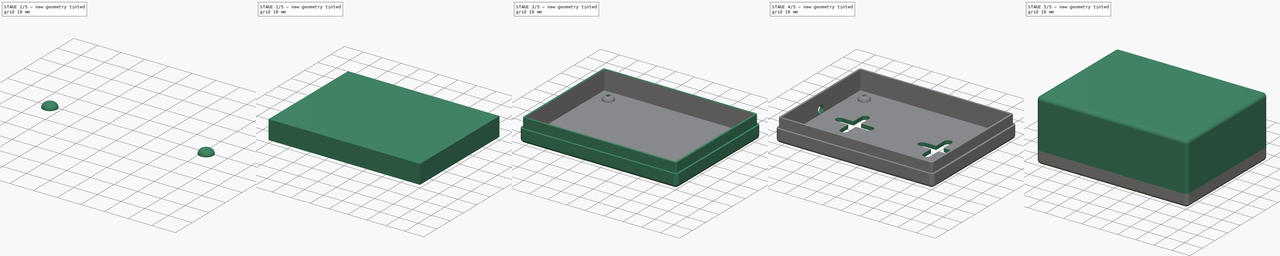
[diagram: build sequence overview — one tinted view per stage of 5, left to right]
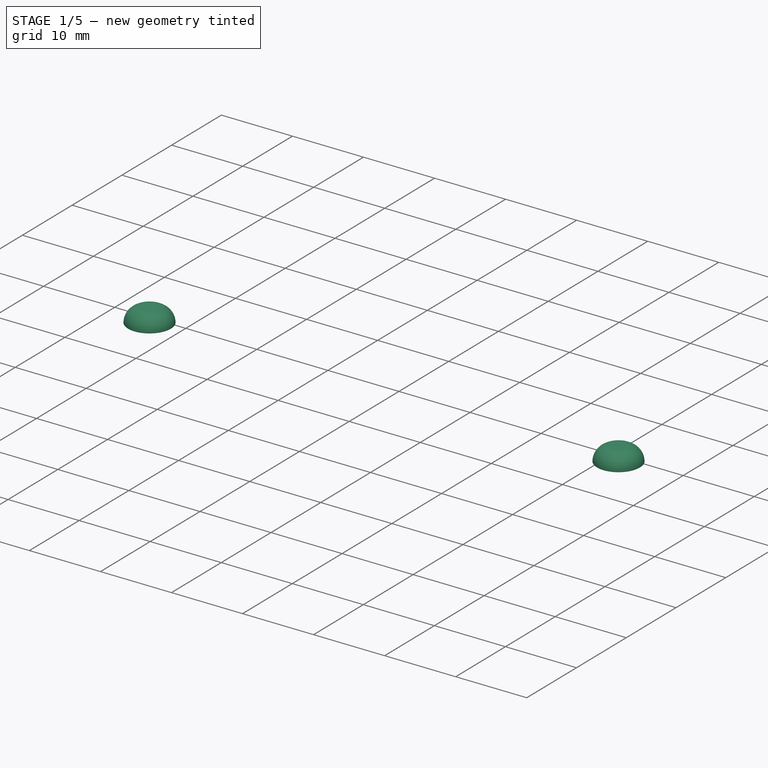
[diagram: stage 1 of 5 — iso view after this stage's code; geometry added in this stage tinted green]
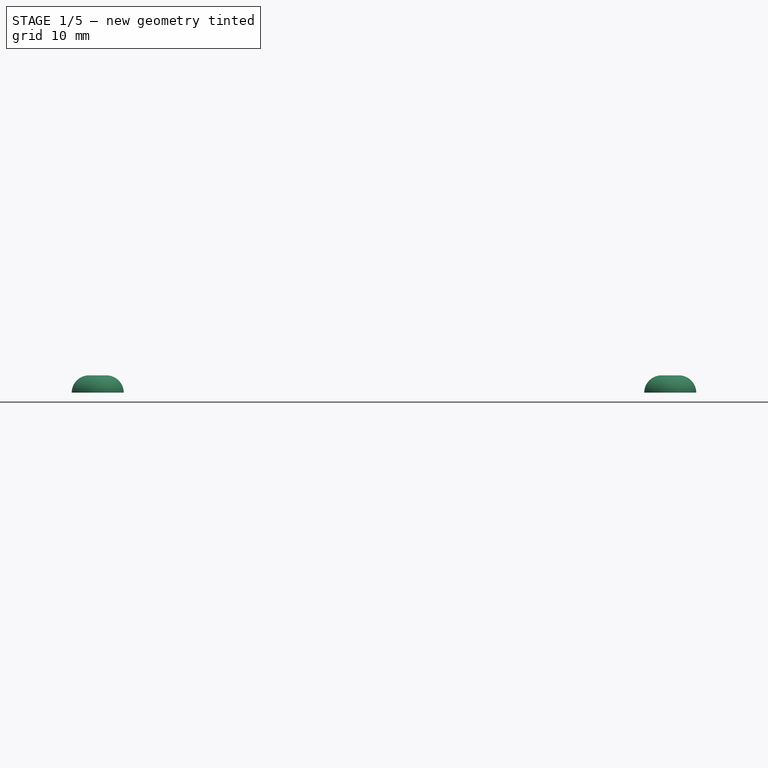
[diagram: stage 1 of 5 — front view after this stage's code; geometry added in this stage tinted green]
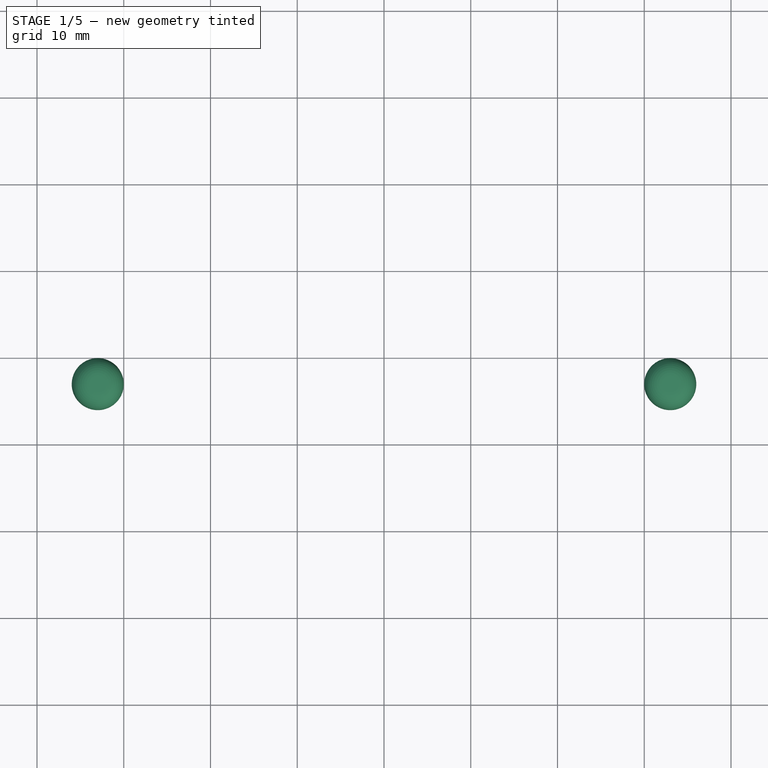
[diagram: stage 1 of 5 — top view after this stage's code; geometry added in this stage tinted green]
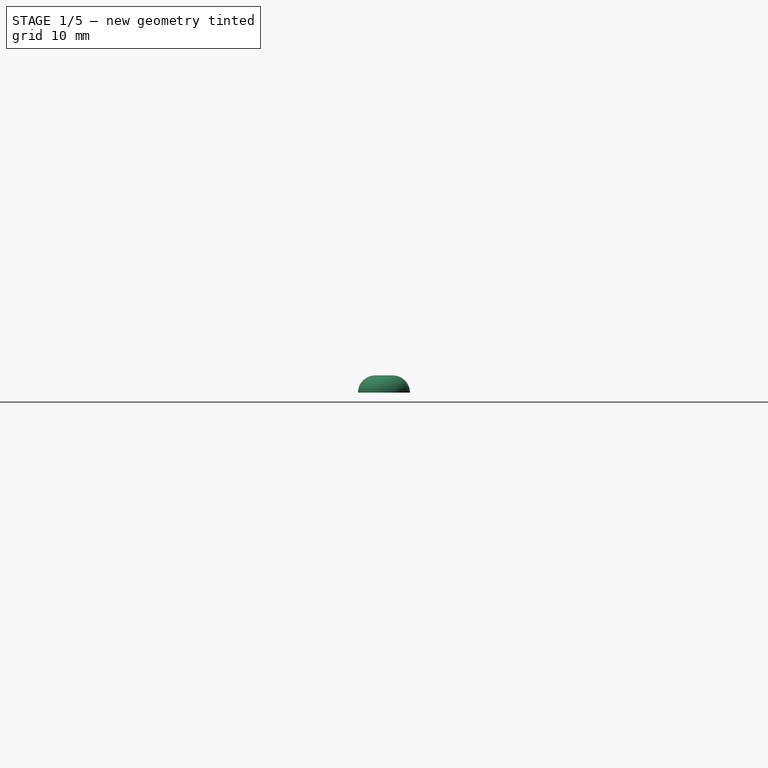
[diagram: stage 1 of 5 — right view after this stage's code; geometry added in this stage tinted green]
FCSTD DOCUMENT  (FreeCAD 0.16R)
Label: box
License: All rights reserved
LicenseURL: http://en.wikipedia.org/wiki/All_rights_reserved
objects: Sketcher::SketchObject×9, PartDesign::Pocket×4, Part::FeaturePython×4, Part::Box×2, Part::Thickness×2, Part::Feature×1, PartDesign::Pad×1, Part::Sphere×1, PartDesign::Revolution×1, App::DocumentObjectGroup×1, Part::MultiFuse×1
note: 32 computed .brp shape members not serialized (recipe doc carries the construction recipe); baked Part::Feature solids carry a one-line shape summary decoded from their .brp

FEATURE [Sketcher::SketchObject] Sketch007  label="PcbMeasurements"
  ExternalGeometry = -> [Part__Feature]
  Placement = pos=(40,30,3.6) rot=(0,0,1;1.5708rad)
  Support = -> Part__Feature [Face5]
  constraints (5):
    c: Distance(g-6,g-5) = 46  'HoleDistanceY'
    c: Distance(g-3,g-6) = 66  'HoleDistanceX'
    c: Radius(g-3) = 1  'HoleRadius'
    c: DistanceY(g-7,g-7) = 70  'LengthX'
    c: DistanceX(g-8,g-8) = 50  'LengthY'
FEATURE [Sketcher::SketchObject] Sketch008  label="NutHolesSketch"
  Placement = pos=(0,0,-1) rot=(1,0,0;3.14159rad)
  expr: Constraints[84] = PcbMeasurements.Constraints.HoleDistanceY
  expr: Constraints[83] = PcbMeasurements.Constraints.HoleDistanceX
  expr: Constraints[74] = WallInnerProfile.Constraints.X / 2
  expr: Constraints[73] = WallInnerProfile.Constraints.Y / 2
  sketch-geometry (30):
    g0: LineSegment StartX=5 StartY=-8.1547 StartZ=0 EndX=7 EndY=-9.3094 EndZ=0
    g1: LineSegment StartX=7 StartY=-9.3094 StartZ=0 EndX=9 EndY=-8.1547 EndZ=0
    g2: LineSegment StartX=9 StartY=-8.1547 StartZ=0 EndX=9 EndY=-5.8453 EndZ=0
    g3: LineSegment StartX=9 StartY=-5.8453 StartZ=0 EndX=7 EndY=-4.6906 EndZ=0
    g4: LineSegment StartX=7 StartY=-4.6906 StartZ=0 EndX=5 EndY=-5.8453 EndZ=0
    g5: LineSegment StartX=5 StartY=-5.8453 StartZ=0 EndX=5 EndY=-8.1547 EndZ=0
    g6: Circle [constr] CenterX=7 CenterY=-7 CenterZ=0 NormalX=0 NormalY=0 NormalZ=1 Radius=2.3094
    g7: LineSegment StartX=75 StartY=-8.1547 StartZ=0 EndX=75 EndY=-5.8453 EndZ=0
    g8: LineSegment StartX=75 StartY=-5.8453 StartZ=0 EndX=73 EndY=-4.6906 EndZ=0
    g9: LineSegment StartX=73 StartY=-4.6906 StartZ=0 EndX=71 EndY=-5.8453 EndZ=0
    g10: LineSegment StartX=71 StartY=-5.8453 StartZ=0 EndX=71 EndY=-8.1547 EndZ=0
    g11: LineSegment StartX=71 StartY=-8.1547 StartZ=0 EndX=73 EndY=-9.3094 EndZ=0
    g12: LineSegment StartX=73 StartY=-9.3094 StartZ=0 EndX=75 EndY=-8.1547 EndZ=0
    g13: Circle [constr] CenterX=73 CenterY=-7 CenterZ=0 NormalX=0 NormalY=0 NormalZ=1 Radius=2.3094
    g14: LineSegment StartX=71 StartY=-54.1547 StartZ=0 EndX=73 EndY=-55.3094 EndZ=0
    g15: LineSegment StartX=73 StartY=-55.3094 StartZ=0 EndX=75 EndY=-54.1547 EndZ=0
    g16: LineSegment StartX=75 StartY=-54.1547 StartZ=0 EndX=75 EndY=-51.8453 EndZ=0
    g17: LineSegment StartX=75 StartY=-51.8453 StartZ=0 EndX=73 EndY=-50.6906 EndZ=0
    g18: LineSegment StartX=73 StartY=-50.6906 StartZ=0 EndX=71 EndY=-51.8453 EndZ=0
    g19: LineSegment StartX=71 StartY=-51.8453 StartZ=0 EndX=71 EndY=-54.1547 EndZ=0
    g20: Circle [constr] CenterX=73 CenterY=-53 CenterZ=0 NormalX=0 NormalY=0 NormalZ=1 Radius=2.3094
    g21: LineSegment StartX=9 StartY=-51.8453 StartZ=0 EndX=7 EndY=-50.6906 EndZ=0
    g22: LineSegment StartX=7 StartY=-50.6906 StartZ=0 EndX=5 EndY=-51.8453 EndZ=0
    g23: LineSegment StartX=5 StartY=-51.8453 StartZ=0 EndX=5 EndY=-54.1547 EndZ=0
    g24: LineSegment StartX=5 StartY=-54.1547 StartZ=0 EndX=7 EndY=-55.3094 EndZ=0
    g25: LineSegment StartX=7 StartY=-55.3094 StartZ=0 EndX=9 EndY=-54.1547 EndZ=0
    g26: LineSegment StartX=9 StartY=-54.1547 StartZ=0 EndX=9 EndY=-51.8453 EndZ=0
    g27: Circle [constr] CenterX=7 CenterY=-53 CenterZ=0 NormalX=0 NormalY=0 NormalZ=1 Radius=2.3094
    g28: LineSegment [constr] StartX=40 StartY=0 StartZ=0 EndX=40 EndY=-30 EndZ=0
    g29: LineSegment [constr] StartX=40 StartY=-30 StartZ=0 EndX=0 EndY=-30 EndZ=0
  constraints (72):
    c: Coincident(g0,g1)
    c: Coincident(g1,g2)
    c: Coincident(g2,g3)
    c: Coincident(g3,g4)
    c: Coincident(g4,g5)
    c: Coincident(g5,g0)
    c: Equal(g0, g1-g5) x5
    c: PointOnObject(g0,g6)
    c: PointOnObject(g1,g6)
    c: PointOnObject(g2,g6)
    c: PointOnObject(g3,g6)
    c: PointOnObject(g4,g6)
    c: PointOnObject(g5,g6)
    c: Vertical(g5)
    c: Coincident(g7,g8)
    c: Coincident(g8,g9)
    c: Coincident(g9,g10)
    c: Coincident(g10,g11)
    c: Coincident(g11,g12)
    c: Coincident(g12,g7)
    c: Equal(g7, g8-g12) x5
    c: PointOnObject(g7,g13)
    c: PointOnObject(g8,g13)
    c: PointOnObject(g9,g13)
    c: PointOnObject(g10,g13)
    c: PointOnObject(g11,g13)
    c: PointOnObject(g12,g13)
    c: Coincident(g14,g15)
    c: Coincident(g15,g16)
    c: Coincident(g16,g17)
    c: Coincident(g17,g18)
    c: Coincident(g18,g19)
    c: Coincident(g19,g14)
    c: Equal(g14, g15-g19) x5
    c: PointOnObject(g14,g20)
    c: PointOnObject(g15,g20)
    c: PointOnObject(g16,g20)
    c: PointOnObject(g17,g20)
    c: PointOnObject(g18,g20)
    c: PointOnObject(g19,g20)
    c: Coincident(g21,g22)
    c: Coincident(g22,g23)
    c: Coincident(g23,g24)
    c: Coincident(g24,g25)
    c: Coincident(g25,g26)
    c: Coincident(g26,g21)
    c: Equal(g21, g22-g26) x5
    c: PointOnObject(g21,g27)
    c: PointOnObject(g22,g27)
    c: PointOnObject(g23,g27)
    c: PointOnObject(g24,g27)
    c: PointOnObject(g25,g27)
    c: PointOnObject(g26,g27)
    c: PointOnObject(g28,g-1)
    c: Vertical(g28)
    c: Coincident(g28,g29)
    c: PointOnObject(g29,g-2)
    c: DistanceX(g29,g29) = 40
    c: DistanceY(g28,g28) = 30
    c: Symmetric(g6,g27,g29)
    c: Symmetric(g27,g20,g28)
    c: Symmetric(g13,g20,g29)
    c: Symmetric(g6,g13,g28)
    c: Equal(g27,g20)
    c: Equal(g20,g13)
    c: Equal(g13,g6)
    c: Distance(g4,g2) = 4
    c: Distance(g27,g20) = 66
    c: Distance(g20,g13) = 46
    c: Vertical(g10)
    c: Vertical(g23)
    c: Vertical(g19)
FEATURE [Sketcher::SketchObject] Sketch010  label="StandOffProfile"
  Placement = pos=(0,0,0) rot=(-1,0,0;4.71239rad)
  sketch-geometry (4):
    g0: ArcOfCircle CenterX=-1 CenterY=0 CenterZ=0 NormalX=0 NormalY=0 NormalZ=1 Radius=2 StartAngle=1.5708 EndAngle=3.14159
    g1: LineSegment StartX=-3 StartY=0 StartZ=0 EndX=0 EndY=0 EndZ=0
    g2: LineSegment StartX=-1 StartY=2 StartZ=0 EndX=0 EndY=2 EndZ=0
    g3: LineSegment StartX=0 StartY=2 StartZ=0 EndX=0 EndY=0 EndZ=0
  constraints (10):
    c: Tangent(g0,g2) = 1.5708
    c: Horizontal(g2)
    c: DistanceX(g2,g2) = 1
    c: Perpendicular(g0,g1) = 1.5708
    c: Coincident(g3,g2)
    c: Coincident(g3,g1)
    c: Vertical(g3)
    c: Coincident(g1,g-1)
    c: PointOnObject(g0,g-1)
    c: DistanceY(g3,g3) = 2
FEATURE [PartDesign::Revolution] Revolution  label="StandOff"
  Angle = 360
  Axis = (0,0,1)
  Base = (0,0,0)
  Placement = pos=(0,0,0) rot=(-1,0,0;4.71239rad)
  ReferenceAxis = -> Sketch010 [V_Axis]
  Sketch = -> Sketch010
FEATURE [Part::FeaturePython] Clone006  label="StandOffBottomRight"  # Draft clone (typed FeaturePython)
  Objects = -> [Revolution]
  Placement = pos=(73,7,0) rot=(1,0,0;1.5708rad)
  Scale = (1,1,1)
  expr: Placement.Base.y = WallInnerProfile.Constraints.X / 2 - PcbMeasurements.Constraints.HoleDistanceY / 2
  expr: Placement.Base.x = WallInnerProfile.Constraints.Y / 2 + PcbMeasurements.Constraints.HoleDistanceX / 2
FEATURE [Part::FeaturePython] Clone007  label="StandOffBottomLeft"  # Draft clone (typed FeaturePython)
  Objects = -> [Revolution]
  Placement = pos=(7,7,0) rot=(1,0,0;1.5708rad)
  Scale = (1,1,1)
  expr: Placement.Base.y = WallInnerProfile.Constraints.X / 2 - PcbMeasurements.Constraints.HoleDistanceY / 2
  expr: Placement.Base.x = WallInnerProfile.Constraints.Y / 2 - PcbMeasurements.Constraints.HoleDistanceX / 2
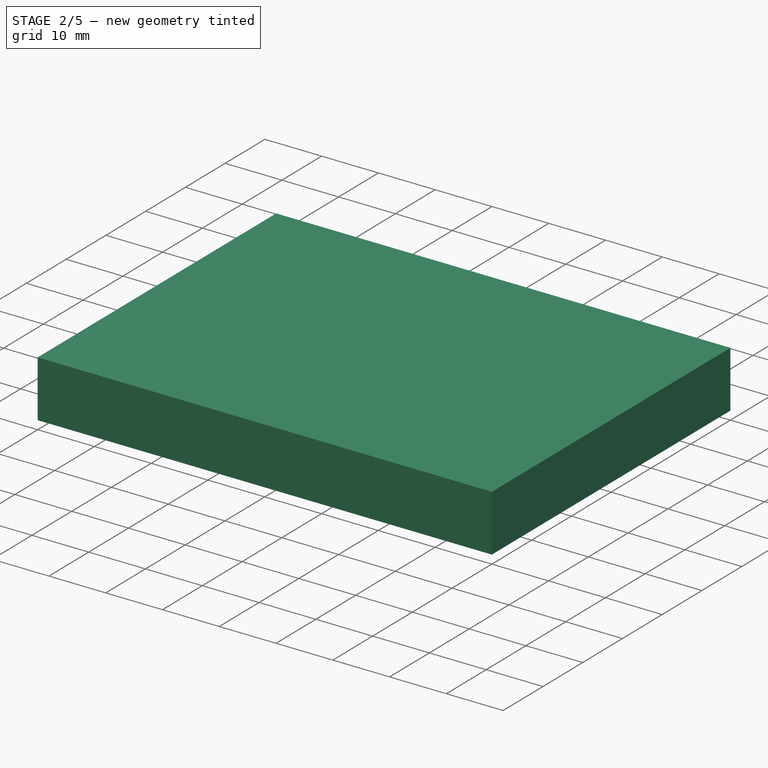
[diagram: stage 2 of 5 — iso view after this stage's code; geometry added in this stage tinted green]
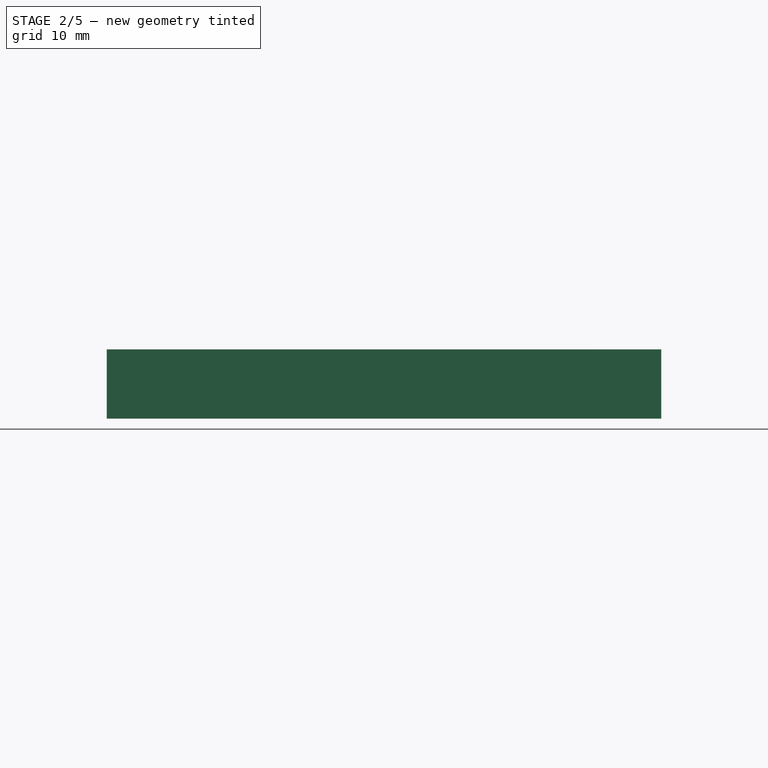
[diagram: stage 2 of 5 — front view after this stage's code; geometry added in this stage tinted green]
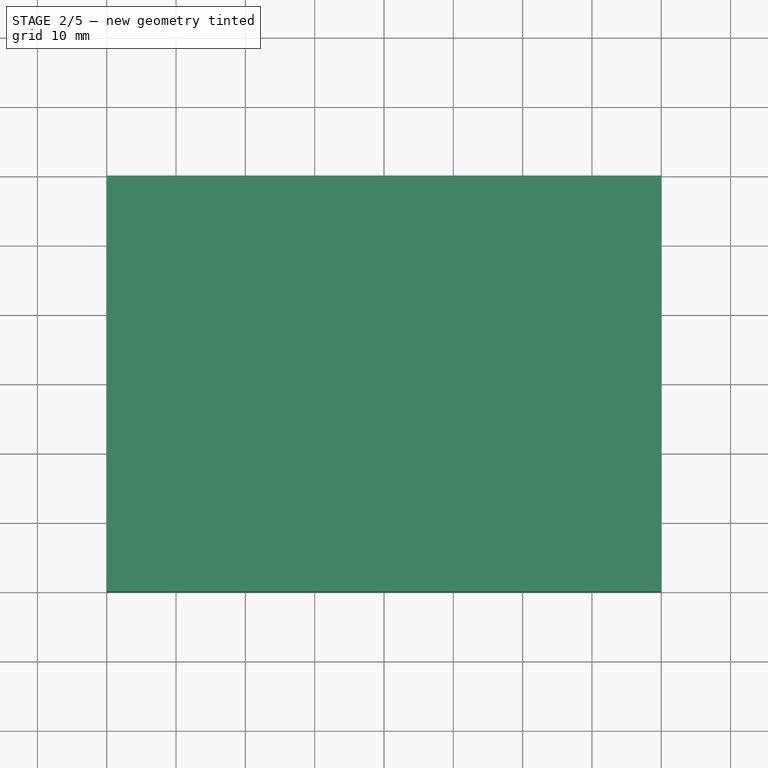
[diagram: stage 2 of 5 — top view after this stage's code; geometry added in this stage tinted green]
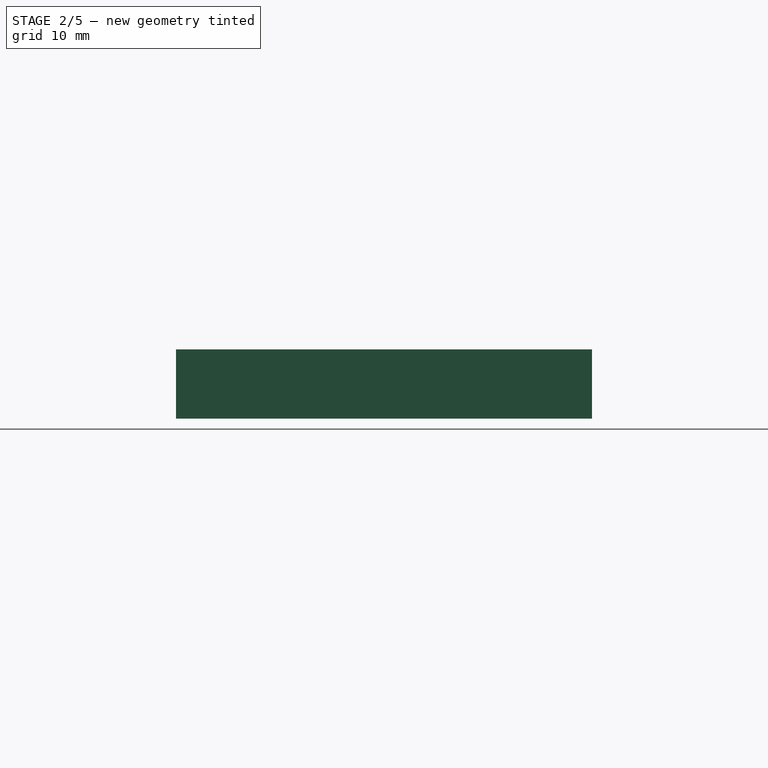
[diagram: stage 2 of 5 — right view after this stage's code; geometry added in this stage tinted green]
FEATURE [Part::Feature] Part__Feature  label="PCB"
  Placement = pos=(40,30,2) rot=(0,0,1;1.5708rad)
  shape: bbox 70 x 50 x 1.6 mm, 442 faces (baked)
  expr: Placement.Base.y = (WallInnerProfile.Constraints.X - Shape.BoundBox.YLength) / 2 + Shape.BoundBox.YLength / 2
  expr: Placement.Base.x = (WallInnerProfile.Constraints.Y - Shape.BoundBox.XLength) / 2 + Shape.BoundBox.XLength / 2
FEATURE [Sketcher::SketchObject] Sketch  label="WallInnerProfile"
  sketch-geometry (8):
    g0: LineSegment StartX=-20 StartY=40 StartZ=0 EndX=20 EndY=40 EndZ=0
    g1: LineSegment StartX=30 StartY=30 StartZ=0 EndX=30 EndY=-30 EndZ=0
    g2: LineSegment StartX=20 StartY=-40 StartZ=0 EndX=-20 EndY=-40 EndZ=0
    g3: LineSegment StartX=-30 StartY=-30 StartZ=0 EndX=-30 EndY=30 EndZ=0
    g4: ArcOfCircle CenterX=-20 CenterY=30 CenterZ=0 NormalX=0 NormalY=0 NormalZ=1 Radius=10 StartAngle=1.5708 EndAngle=3.14159
    g5: ArcOfCircle CenterX=20 CenterY=30 CenterZ=0 NormalX=0 NormalY=0 NormalZ=1 Radius=10 StartAngle=0 EndAngle=1.5708
    g6: ArcOfCircle CenterX=20 CenterY=-30 CenterZ=0 NormalX=0 NormalY=0 NormalZ=1 Radius=10 StartAngle=4.71239 EndAngle=6.28319
    g7: ArcOfCircle CenterX=-20 CenterY=-30 CenterZ=0 NormalX=0 NormalY=0 NormalZ=1 Radius=10 StartAngle=3.14159 EndAngle=4.71239
  constraints (20):
    c: Horizontal(g0)
    c: Horizontal(g2)
    c: Vertical(g1)
    c: Vertical(g3)
    c: Tangent(g0,g4) = 1.5708
    c: Tangent(g3,g4) = 1.5708
    c: Tangent(g0,g5) = 1.5708
    c: Tangent(g1,g5) = 1.5708
    c: Tangent(g1,g6) = 1.5708
    c: Tangent(g2,g6) = 1.5708
    c: Tangent(g2,g7) = 1.5708
    c: Tangent(g3,g7) = 1.5708
    c: Equal(g5,g4)
    c: Equal(g4,g7)
    c: Equal(g7,g6)
    c: Symmetric(g0,g0,g-2)
    c: Symmetric(g1,g1,g-1)
    c: DistanceX(g3,g1) = 60  'X'
    c: DistanceY(g2,g0) = 80  'Y'
    c: Radius(g4) = 10  'r'
FEATURE [Part::Box] Box  label="BottomCube"
  Height = 10
  Length = 80
  Width = 60
FEATURE [App::DocumentObjectGroup] Gruppe  label="Support"
  Group = -> [Revolution,Sphere]
FEATURE [Part::FeaturePython] Clone004  label="StandOffTopLeft"  # Draft clone (typed FeaturePython)
  Objects = -> [Revolution]
  Placement = pos=(7,53,0) rot=(-1,0,0;4.71239rad)
  Scale = (1,1,1)
  expr: Placement.Base.y = WallInnerProfile.Constraints.X / 2 + PcbMeasurements.Constraints.HoleDistanceY / 2
  expr: Placement.Base.x = WallInnerProfile.Constraints.Y / 2 - PcbMeasurements.Constraints.HoleDistanceX / 2
FEATURE [Part::FeaturePython] Clone005  label="StandOffTopRight"  # Draft clone (typed FeaturePython)
  Objects = -> [Revolution]
  Placement = pos=(73,53,0) rot=(1,0,0;1.5708rad)
  Scale = (1,1,1)
  expr: Placement.Base.y = WallInnerProfile.Constraints.X / 2 + PcbMeasurements.Constraints.HoleDistanceY / 2
  expr: Placement.Base.x = WallInnerProfile.Constraints.Y / 2 + PcbMeasurements.Constraints.HoleDistanceX / 2
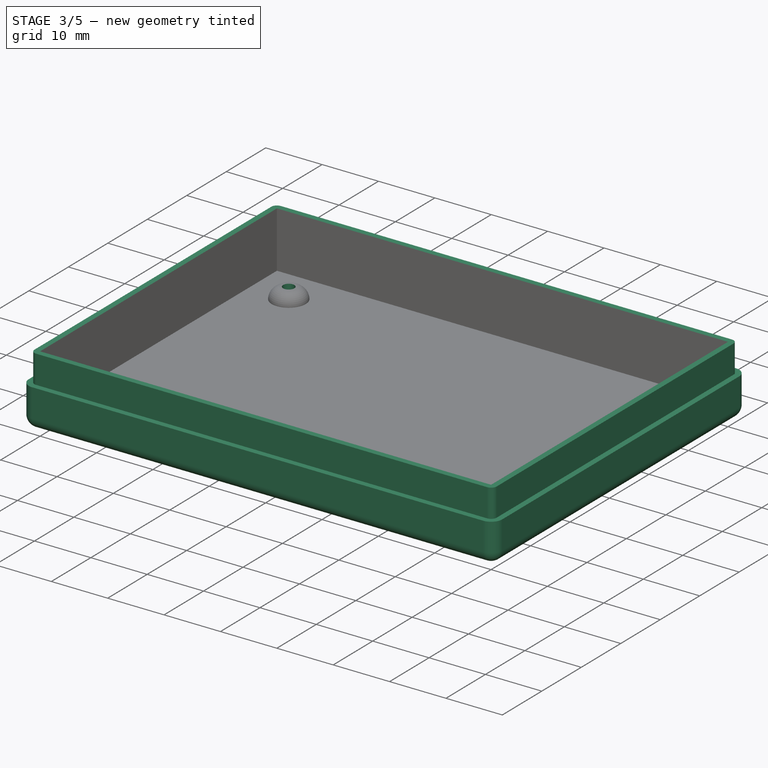
[diagram: stage 3 of 5 — iso view after this stage's code; geometry added in this stage tinted green]
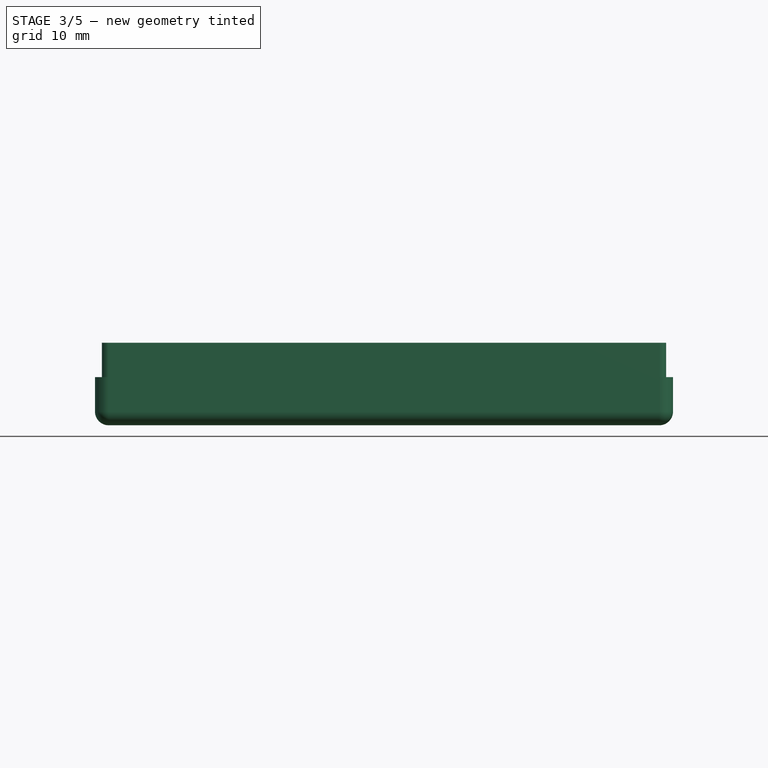
[diagram: stage 3 of 5 — front view after this stage's code; geometry added in this stage tinted green]
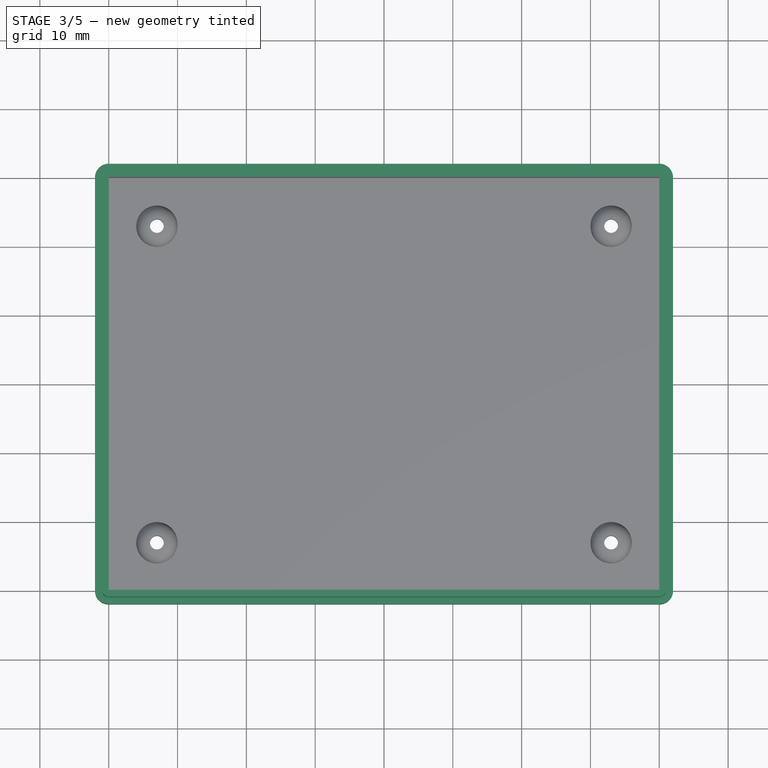
[diagram: stage 3 of 5 — top view after this stage's code; geometry added in this stage tinted green]
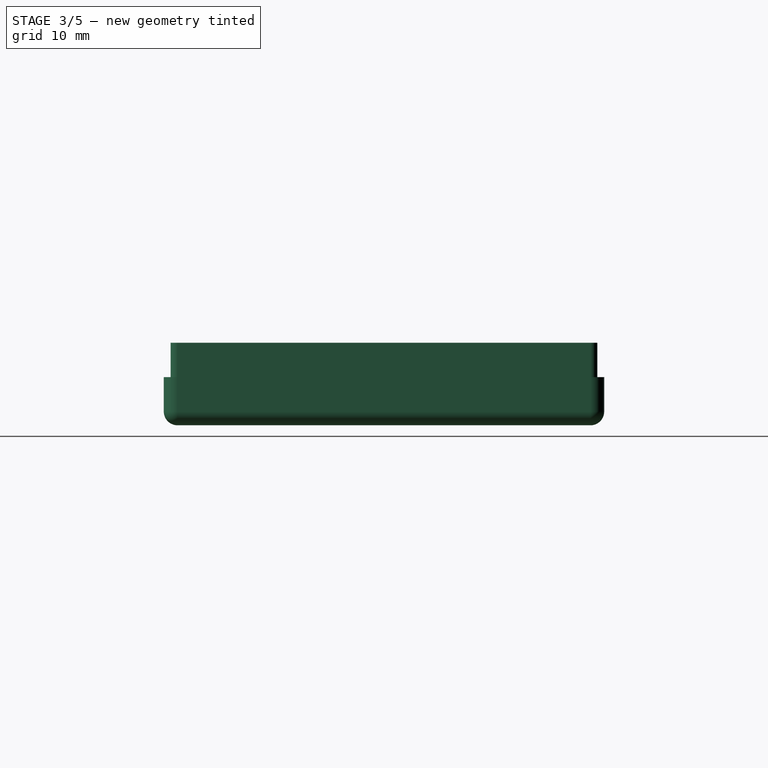
[diagram: stage 3 of 5 — right view after this stage's code; geometry added in this stage tinted green]
FEATURE [Part::Thickness] Thickness  label="BottomThickness"
  Faces = -> Box [Face6]
  Intersection = false
  Join = 0
  Mode = 0
  SelfIntersection = false
  Value = 2
FEATURE [Sketcher::SketchObject] Sketch004  label="BottomInnerWallSketch"
  Placement = pos=(0,0,10) rot=(0,0,1;0rad)
  Support = -> Thickness [Face6]
  expr: Constraints[35] = BottomCube.Length
  expr: Constraints[36] = BottomCube.Width
  expr: Constraints[34] = BottomThickness.Value / 2
  expr: Constraints[6] = BottomThickness.Value
  sketch-geometry (16):
    g0: LineSegment StartX=-1e-12 StartY=62 StartZ=0 EndX=80 EndY=62 EndZ=0
    g1: LineSegment StartX=82 StartY=60 StartZ=0 EndX=82 EndY=0 EndZ=0
    g2: LineSegment StartX=80 StartY=-2 StartZ=0 EndX=-6e-12 EndY=-2 EndZ=0
    g3: LineSegment StartX=-2 StartY=0 StartZ=0 EndX=-2 EndY=60 EndZ=0
    g4: ArcOfCircle CenterX=0 CenterY=0 CenterZ=0 NormalX=0 NormalY=0 NormalZ=1 Radius=2 StartAngle=3.14159 EndAngle=4.71239
    g5: ArcOfCircle CenterX=0 CenterY=60 CenterZ=0 NormalX=0 NormalY=0 NormalZ=1 Radius=2 StartAngle=1.5708 EndAngle=3.14159
    g6: ArcOfCircle CenterX=80 CenterY=60 CenterZ=0 NormalX=0 NormalY=0 NormalZ=1 Radius=2 StartAngle=0 EndAngle=1.5708
    g7: ArcOfCircle CenterX=80 CenterY=0 CenterZ=0 NormalX=0 NormalY=0 NormalZ=1 Radius=2 StartAngle=4.71239 EndAngle=6.28319
    g8: LineSegment StartX=-1.3e-11 StartY=61 StartZ=0 EndX=80 EndY=61 EndZ=0
    g9: LineSegment StartX=81 StartY=60 StartZ=0 EndX=81 EndY=-1.6e-11 EndZ=0
    g10: LineSegment StartX=80 StartY=-1 StartZ=0 EndX=1e-12 EndY=-1 EndZ=0
    g11: LineSegment StartX=-1 StartY=-2e-12 StartZ=0 EndX=-1 EndY=60 EndZ=0
    g12: ArcOfCircle CenterX=0 CenterY=60 CenterZ=0 NormalX=0 NormalY=0 NormalZ=1 Radius=1 StartAngle=1.5708 EndAngle=3.14159
    g13: ArcOfCircle CenterX=80 CenterY=60 CenterZ=0 NormalX=0 NormalY=0 NormalZ=1 Radius=1 StartAngle=0 EndAngle=1.5708
    g14: ArcOfCircle CenterX=80 CenterY=0 CenterZ=0 NormalX=0 NormalY=0 NormalZ=1 Radius=1 StartAngle=4.71239 EndAngle=6.28319
    g15: ArcOfCircle CenterX=0 CenterY=0 CenterZ=0 NormalX=0 NormalY=0 NormalZ=1 Radius=1 StartAngle=3.14159 EndAngle=4.71239
  constraints (37):
    c: Horizontal(g0)
    c: Horizontal(g2)
    c: Vertical(g1)
    c: Vertical(g3)
    c: Tangent(g2,g4) = 1.5708
    c: Tangent(g3,g4) = 1.5708
    c: Radius(g4) = 2
    c: Coincident(g4,g-1)
    c: Tangent(g0,g5) = 1.5708
    c: Tangent(g3,g5) = 1.5708
    c: Tangent(g0,g6) = 1.5708
    c: Tangent(g1,g6) = 1.5708
    c: Tangent(g1,g7) = 1.5708
    c: Tangent(g2,g7) = 1.5708
    c: Equal(g7,g6)
    c: Equal(g6,g5)
    c: Equal(g5,g4)
    c: Horizontal(g8)
    c: Horizontal(g10)
    c: Vertical(g9)
    c: Vertical(g11)
    c: Tangent(g8,g12) = 1.5708
    c: Tangent(g11,g12) = 1.5708
    c: Tangent(g8,g13) = 1.5708
    c: Tangent(g9,g13) = 1.5708
    c: Tangent(g9,g14) = 1.5708
    c: Tangent(g10,g14) = 1.5708
    c: Tangent(g10,g15) = 1.5708
    c: Tangent(g11,g15) = 1.5708
    c: Equal(g15,g14)
    c: Equal(g14,g13)
    c: Coincident(g12,g5)
    c: Coincident(g6,g13)
    c: Coincident(g4,g15)
    c: DistanceY(g2,g10) = 1
    c: DistanceX(g0,g0) = 80
    c: DistanceY(g3,g3) = 60
FEATURE [PartDesign::Pocket] Pocket  label="BottomBase"
  Length = 5
  Sketch = -> Sketch004
  Type = 0
FEATURE [Part::MultiFuse] Fusion002  label="BottomWithStandOffs"
  Shapes = -> [Pocket,Clone004,Clone005,Clone006,Clone007]
FEATURE [Sketcher::SketchObject] Sketch006  label="MountingHolesSketch"
  Placement = pos=(0,0,-2) rot=(1,0,0;3.14159rad)
  Support = -> Fusion002 [Face40]
  expr: Constraints[14] = WallInnerProfile.Constraints.Y / 2
  expr: Constraints[3] = PcbMeasurements.Constraints.HoleRadius
  expr: Constraints[13] = WallInnerProfile.Constraints.X / 2
  expr: Constraints[12] = PcbMeasurements.Constraints.HoleDistanceX
  expr: Constraints[11] = PcbMeasurements.Constraints.HoleDistanceY
  sketch-geometry (6):
    g0: Circle CenterX=7 CenterY=-7 CenterZ=0 NormalX=0 NormalY=0 NormalZ=1 Radius=1
    g1: Circle CenterX=7 CenterY=-53 CenterZ=0 NormalX=0 NormalY=0 NormalZ=1 Radius=1
    g2: Circle CenterX=73 CenterY=-53 CenterZ=0 NormalX=0 NormalY=0 NormalZ=1 Radius=1
    g3: Circle CenterX=73 CenterY=-7 CenterZ=0 NormalX=0 NormalY=0 NormalZ=1 Radius=1
    g4: LineSegment [constr] StartX=40 StartY=0 StartZ=0 EndX=40 EndY=-30 EndZ=0
    g5: LineSegment [constr] StartX=40 StartY=-30 StartZ=0 EndX=0 EndY=-30 EndZ=0
  constraints (16):
    c: Equal(g3,g2)
    c: Equal(g2,g1)
    c: Equal(g1,g0)
    c: Radius(g0) = 1
    c: PointOnObject(g4,g-1)
    c: Vertical(g4)
    c: PointOnObject(g5,g-2)
    c: Horizontal(g5)
    c: Symmetric(g0,g1,g5)
    c: Symmetric(g0,g3,g4)
    c: Symmetric(g3,g2,g5)
    c: Distance(g3,g2) = 46
    c: Distance(g2,g1) = 66
    c: DistanceY(g4,g4) = 30
    c: DistanceX(g5,g5) = 40
    c: Coincident(g4,g5)
FEATURE [PartDesign::Pocket] Pocket001  label="BottomWithMountingHoles"
  Length = 5
  Sketch = -> Sketch006
  Type = 1
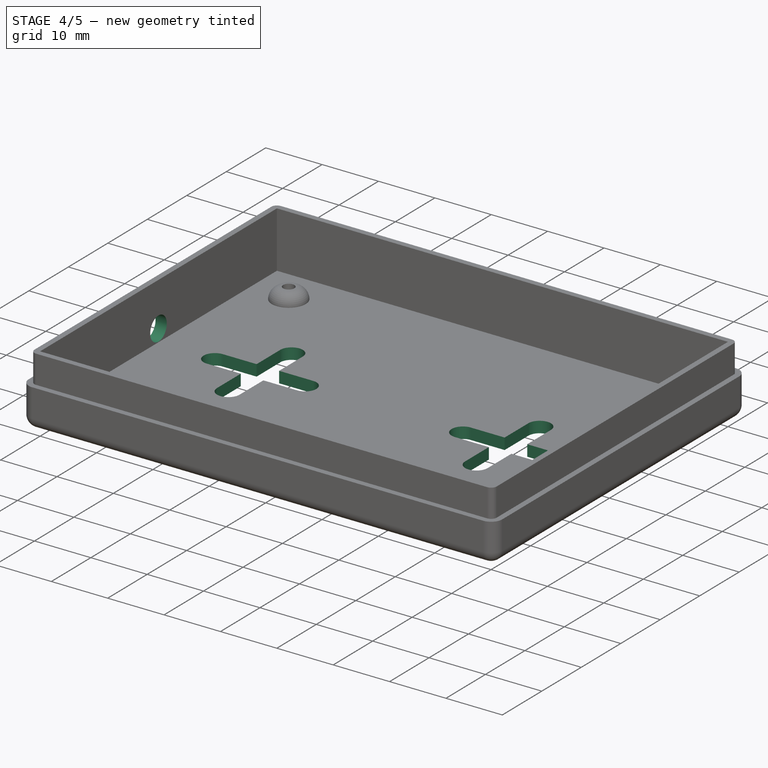
[diagram: stage 4 of 5 — iso view after this stage's code; geometry added in this stage tinted green]
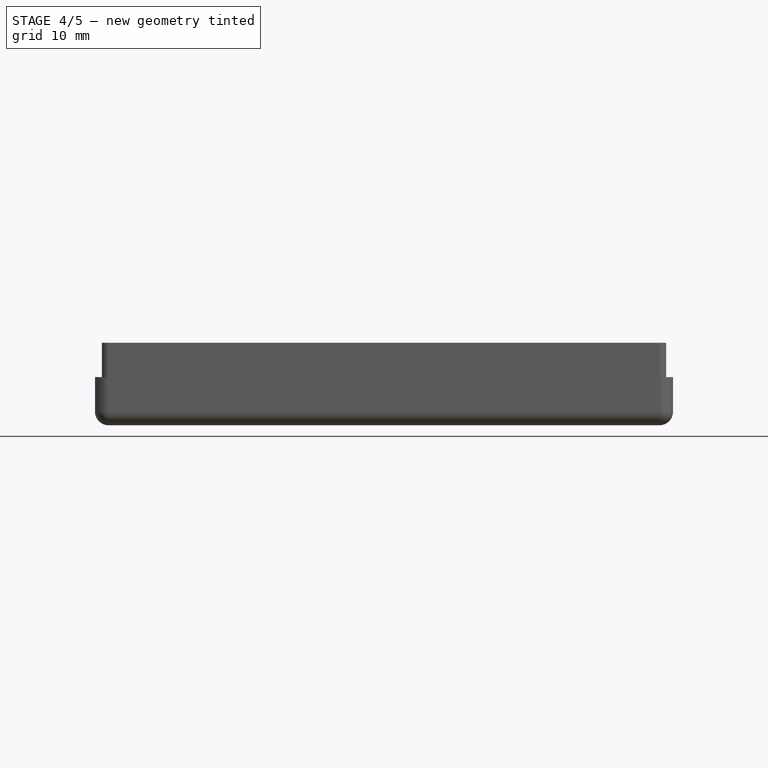
[diagram: stage 4 of 5 — front view after this stage's code; geometry added in this stage tinted green]
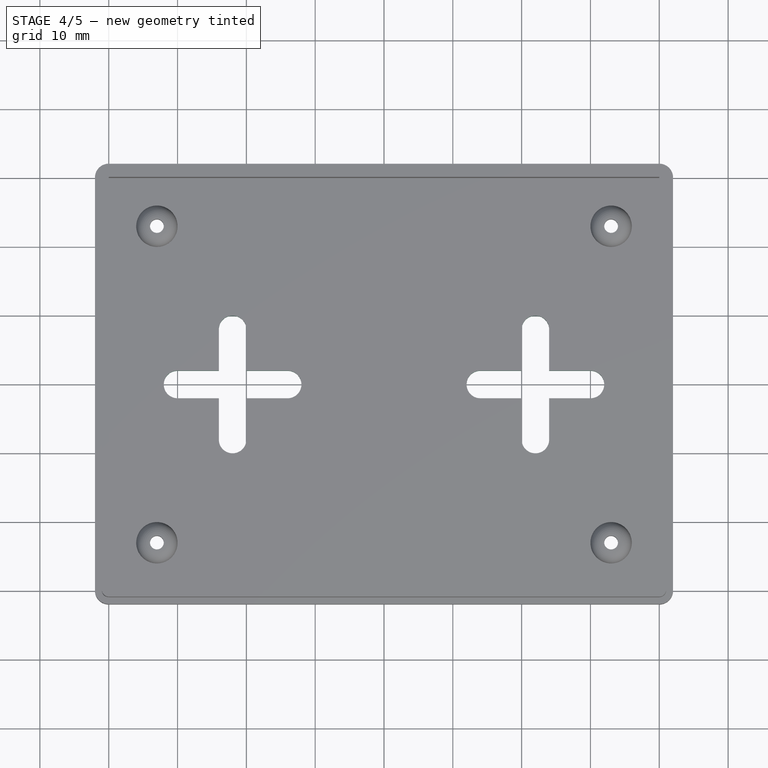
[diagram: stage 4 of 5 — top view after this stage's code; geometry added in this stage tinted green]
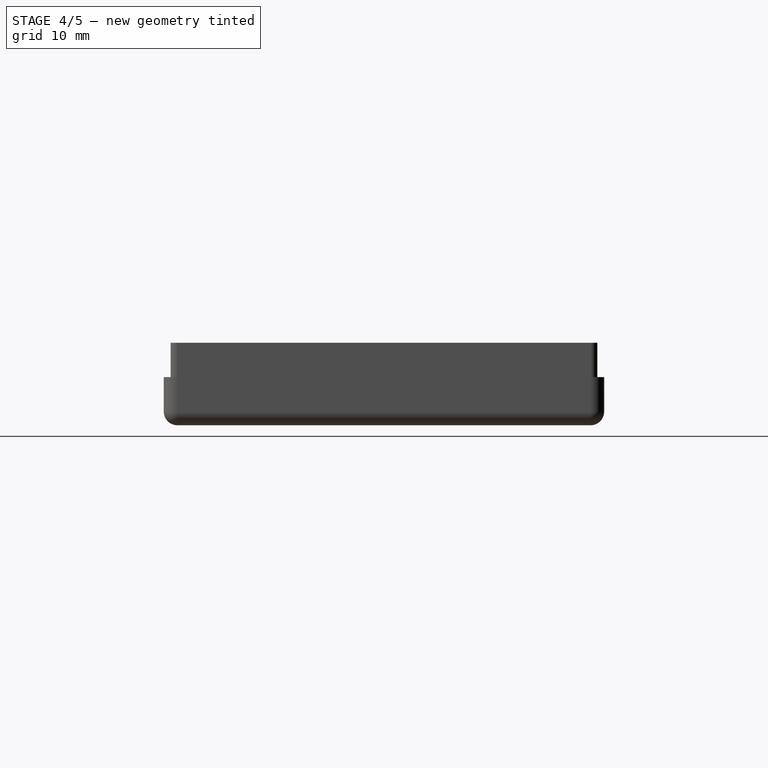
[diagram: stage 4 of 5 — right view after this stage's code; geometry added in this stage tinted green]
FEATURE [Part::Sphere] Sphere  label="WallNotch"
  Angle1 = -90
  Angle2 = 90
  Angle3 = 180
  Placement = pos=(0,0,0) rot=(0,0,1;1.5708rad)
  Radius = 1
  expr: Placement.Base.z = 0
FEATURE [Sketcher::SketchObject] Sketch009  label="WallMountCrossSketch"
  Placement = pos=(0,0,-2) rot=(1,0,0;3.14159rad)
  Support = -> Pocket001 [Face4]
  sketch-geometry (27):
    g0: LineSegment [constr] StartX=40 StartY=0 StartZ=0 EndX=40 EndY=-30 EndZ=0
    g1: LineSegment [constr] StartX=40 StartY=-30 StartZ=0 EndX=0 EndY=-30 EndZ=0
    g2: LineSegment StartX=10 StartY=-28 StartZ=0 EndX=16 EndY=-28 EndZ=0
    g3: LineSegment StartX=16 StartY=-28 StartZ=0 EndX=16 EndY=-22 EndZ=0
    g4: LineSegment StartX=20 StartY=-22 StartZ=0 EndX=20 EndY=-28 EndZ=0
    g5: LineSegment StartX=20 StartY=-28 StartZ=0 EndX=26 EndY=-28 EndZ=0
    g6: LineSegment StartX=26 StartY=-32 StartZ=0 EndX=20 EndY=-32 EndZ=0
    g7: LineSegment StartX=20 StartY=-32 StartZ=0 EndX=20 EndY=-38 EndZ=0
    g8: LineSegment StartX=16 StartY=-38 StartZ=0 EndX=16 EndY=-32 EndZ=0
    g9: LineSegment StartX=16 StartY=-32 StartZ=0 EndX=10 EndY=-32 EndZ=0
    g10: ArcOfCircle CenterX=10 CenterY=-30 CenterZ=0 NormalX=0 NormalY=0 NormalZ=1 Radius=2 StartAngle=1.5708 EndAngle=4.71239
    g11: ArcOfCircle CenterX=18 CenterY=-38 CenterZ=0 NormalX=0 NormalY=0 NormalZ=1 Radius=2 StartAngle=3.14159 EndAngle=6.28319
    g12: ArcOfCircle CenterX=18 CenterY=-22 CenterZ=0 NormalX=0 NormalY=0 NormalZ=1 Radius=2 StartAngle=0 EndAngle=3.14159
    g13: ArcOfCircle CenterX=26 CenterY=-30 CenterZ=0 NormalX=0 NormalY=0 NormalZ=1 Radius=2 StartAngle=4.71239 EndAngle=7.85398
    g14: LineSegment [constr] StartX=40 StartY=-30 StartZ=0 EndX=80 EndY=-30 EndZ=0
    g15: ArcOfCircle CenterX=54 CenterY=-30 CenterZ=0 NormalX=0 NormalY=0 NormalZ=1 Radius=2 StartAngle=1.5708 EndAngle=4.71239
    g16: ArcOfCircle CenterX=62 CenterY=-22 CenterZ=0 NormalX=0 NormalY=0 NormalZ=1 Radius=2 StartAngle=0 EndAngle=3.14159
    g17: ArcOfCircle CenterX=70 CenterY=-30 CenterZ=0 NormalX=0 NormalY=0 NormalZ=1 Radius=2 StartAngle=4.71239 EndAngle=7.85398
    g18: ArcOfCircle CenterX=62 CenterY=-38 CenterZ=0 NormalX=0 NormalY=0 NormalZ=1 Radius=2 StartAngle=3.14159 EndAngle=6.28319
    g19: LineSegment StartX=54 StartY=-32 StartZ=0 EndX=60 EndY=-32 EndZ=0
    g20: LineSegment StartX=60 StartY=-32 StartZ=0 EndX=60 EndY=-38 EndZ=0
    g21: LineSegment StartX=64 StartY=-38 StartZ=0 EndX=64 EndY=-32 EndZ=0
    g22: LineSegment StartX=64 StartY=-32 StartZ=0 EndX=70 EndY=-32 EndZ=0
    g23: LineSegment StartX=54 StartY=-28 StartZ=0 EndX=60 EndY=-28 EndZ=0
    g24: LineSegment StartX=60 StartY=-28 StartZ=0 EndX=60 EndY=-22 EndZ=0
    g25: LineSegment StartX=64 StartY=-22 StartZ=0 EndX=64 EndY=-28 EndZ=0
    g26: LineSegment StartX=70 StartY=-28 StartZ=0 EndX=64 EndY=-28 EndZ=0
  constraints (75):
    c: PointOnObject(g0,g-1)
    c: Vertical(g0)
    c: PointOnObject(g1,g-2)
    c: Horizontal(g1)
    c: DistanceY(g0,g0) = 30
    c: DistanceX(g1,g1) = 40
    c: Horizontal(g2)
    c: Coincident(g2,g3)
    c: Vertical(g3)
    c: Vertical(g4)
    c: Coincident(g4,g5)
    c: Horizontal(g5)
    c: Horizontal(g6)
    c: Coincident(g6,g7)
    c: Vertical(g7)
    c: Vertical(g8)
    c: Coincident(g8,g9)
    c: Horizontal(g9)
    c: Coincident(g10,g9)
    c: Tangent(g8,g11) = 1.5708
    c: Tangent(g7,g11) = 1.5708
    c: Tangent(g5,g13) = 1.5708
    c: Tangent(g6,g13) = 1.5708
    c: Tangent(g3,g12) = 1.5708
    c: Tangent(g4,g12) = 1.5708
    c: Tangent(g10,g2) = 1.5708
    c: PointOnObject(g10,g1)
    c: Symmetric(g11,g12,g1)
    c: Equal(g9,g2)
    c: Equal(g2,g3)
    c: Equal(g3,g4)
    c: Equal(g4,g5)
    c: Equal(g5,g6)
    c: Equal(g6,g7)
    c: Equal(g7,g8)
    c: DistanceY(g8,g2) = 4
    c: Equal(g12,g10)
    c: DistanceX(g9,g9) = 6
    c: DistanceX(g1,g10) = 10
    c: Coincident(g0,g1)
    c: Coincident(g14,g0)
    c: Equal(g14,g1)
    c: Tangent(g15,g19) = -1.5708
    c: Coincident(g19,g20)
    c: Tangent(g18,g21) = -1.5708
    c: Coincident(g21,g22)
    c: Coincident(g24,g23)
    c: Vertical(g25)
    c: Coincident(g26,g25)
    c: Tangent(g17,g26) = -1.5708
    c: Tangent(g17,g22) = -1.5708
    c: Tangent(g18,g20) = -1.5708
    c: Tangent(g15,g23) = 1.5708
    c: Tangent(g16,g24) = 1.5708
    c: Tangent(g16,g25) = 1.5708
    c: Symmetric(g16,g18,g14)
    c: Horizontal(g23)
    c: Horizontal(g26)
    c: Horizontal(g22)
    c: Horizontal(g19)
    c: Vertical(g20)
    c: Vertical(g21)
    c: Vertical(g24)
    c: PointOnObject(g15,g14)
    c: Equal(g23,g24)
    c: Equal(g24,g25)
    c: Equal(g25,g26)
    c: Equal(g26,g22)
    c: Equal(g22,g21)
    c: Equal(g21,g20)
    c: Equal(g20,g19)
    c: Equal(g15,g13)
    c: Equal(g23,g5)
    c: Equal(g15,g16)
    c: Symmetric(g15,g13,g0)
FEATURE [PartDesign::Pocket] Pocket002  label="BottomWithWallMount"
  Length = 5
  Sketch = -> Sketch009
  Type = 1
FEATURE [Sketcher::SketchObject] Sketch011  label="CableHoleSketch"
  Placement = pos=(-2,0,0) rot=(0.57735,-0.57735,-0.57735;2.0944rad)
  Support = -> Pocket002 [Face44]
  expr: Constraints[2] = Constraints.Radius + 0.1
  expr: Constraints[1] = WallInnerProfile.Constraints.X / 2
  expr: Constraints.Radius = 3.5 / 2 * 1.2
  sketch-geometry (1):
    g0: Circle CenterX=-30 CenterY=2.2 CenterZ=0 NormalX=0 NormalY=0 NormalZ=1 Radius=2.1
  constraints (3):
    c: Radius(g0) = 2.1  'Radius'
    c: DistanceX(g0,g-1) = 30
    c: DistanceY(g-1,g0) = 2.2
FEATURE [PartDesign::Pocket] Pocket003  label="BottomWithCableHole"
  Length = 5
  Sketch = -> Sketch011
  Type = 2
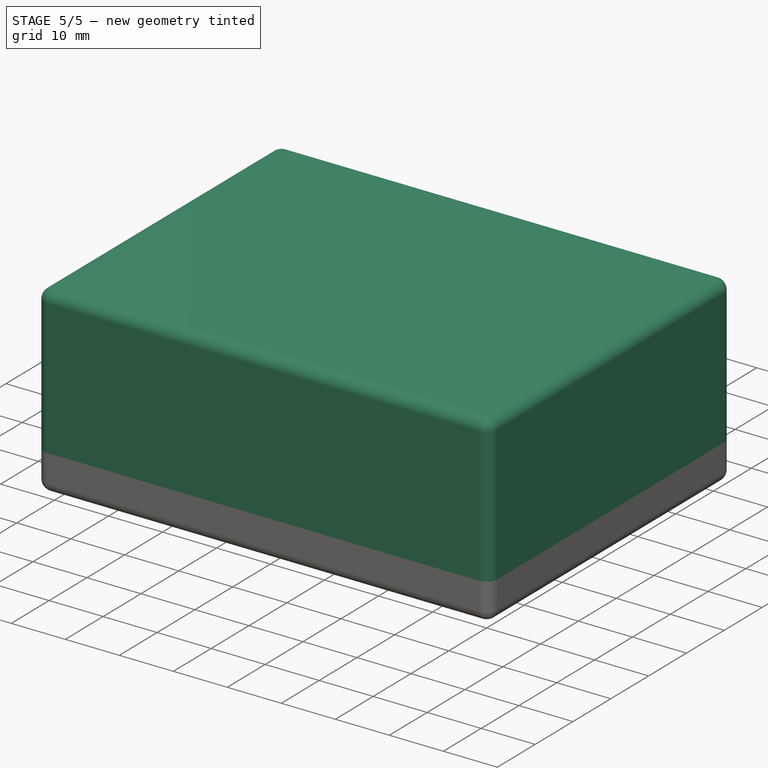
[diagram: stage 5 of 5 — iso view after this stage's code; geometry added in this stage tinted green]
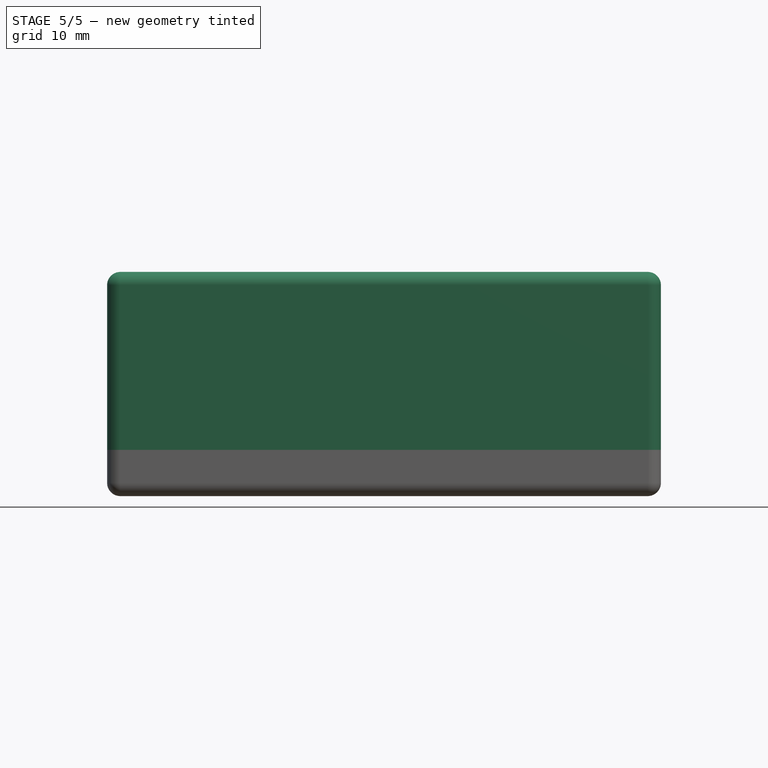
[diagram: stage 5 of 5 — front view after this stage's code; geometry added in this stage tinted green]
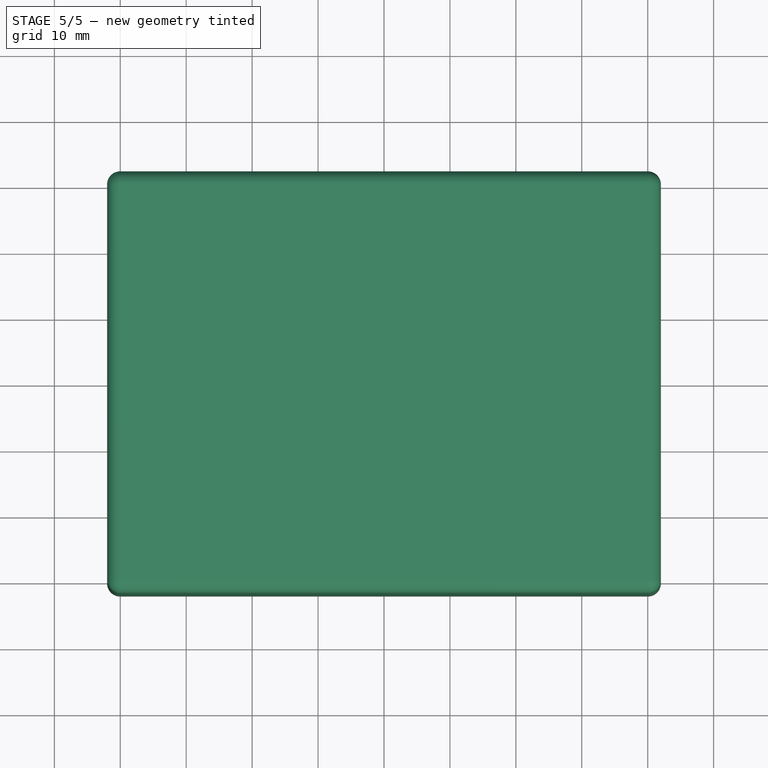
[diagram: stage 5 of 5 — top view after this stage's code; geometry added in this stage tinted green]
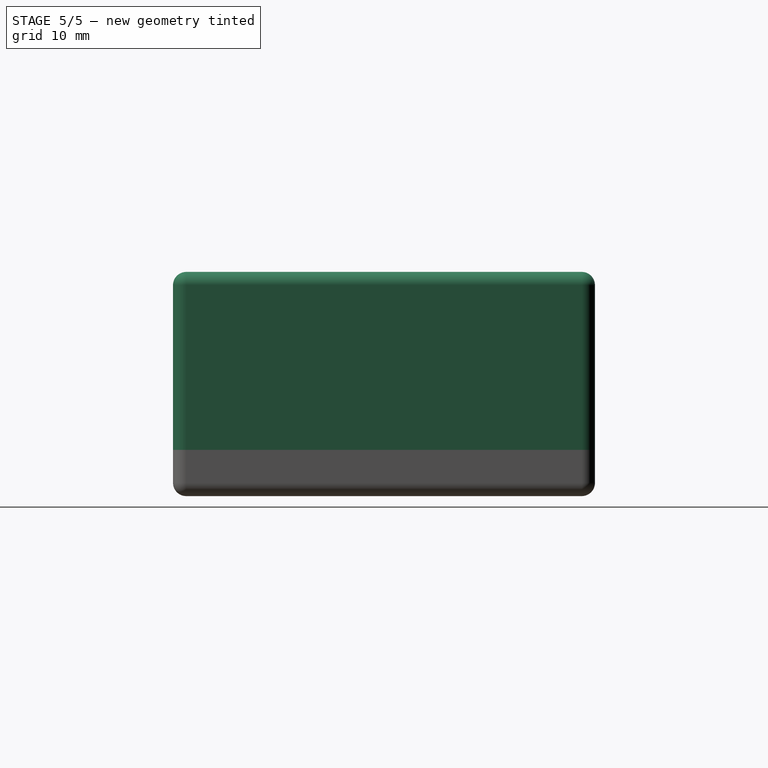
[diagram: stage 5 of 5 — right view after this stage's code; geometry added in this stage tinted green]
FEATURE [Part::Box] Box001  label="TopCube"
  Height = 20
  Length = 80
  Placement = pos=(0,0,10) rot=(0,0,1;0rad)
  Width = 60
  expr: Placement.Base.z = BottomCube.Height
  expr: Width = BottomCube.Width
  expr: Length = BottomCube.Length
FEATURE [Part::Thickness] Thickness001  label="TopThickness"
  Faces = -> Box001 [Face5]
  Intersection = false
  Join = 0
  Mode = 0
  SelfIntersection = false
  Value = 2
  expr: Value = BottomThickness.Value
FEATURE [Sketcher::SketchObject] Sketch005
  Placement = pos=(0,0,10) rot=(1,0,0;3.14159rad)
  Support = -> Thickness001 [Face6]
  expr: Constraints[24] = BottomThickness.Value / 2
  expr: Constraints[35] = BottomThickness.Value / 2
  expr: Constraints[31] = BottomCube.Width
  expr: Constraints[27] = BottomCube.Length
  sketch-geometry (16):
    g0: LineSegment StartX=0 StartY=1 StartZ=0 EndX=80 EndY=1 EndZ=0
    g1: LineSegment StartX=81 StartY=0 StartZ=0 EndX=81 EndY=-60 EndZ=0
    g2: LineSegment StartX=80 StartY=-61 StartZ=0 EndX=0 EndY=-61 EndZ=0
    g3: LineSegment StartX=-1 StartY=-60 StartZ=0 EndX=-1 EndY=0 EndZ=0
    g4: LineSegment StartX=0 StartY=2 StartZ=0 EndX=80 EndY=2 EndZ=0
    g5: LineSegment StartX=82 StartY=0 StartZ=0 EndX=82 EndY=-60 EndZ=0
    g6: LineSegment StartX=80 StartY=-62 StartZ=0 EndX=0 EndY=-62 EndZ=0
    g7: LineSegment StartX=-2 StartY=-60 StartZ=0 EndX=-2 EndY=0 EndZ=0
    g8: ArcOfCircle CenterX=80 CenterY=0 CenterZ=0 NormalX=0 NormalY=0 NormalZ=1 Radius=2 StartAngle=0 EndAngle=1.5708
    g9: ArcOfCircle CenterX=80 CenterY=-60 CenterZ=0 NormalX=0 NormalY=0 NormalZ=1 Radius=2 StartAngle=4.71239 EndAngle=6.28319
    g10: ArcOfCircle CenterX=80 CenterY=-60 CenterZ=0 NormalX=0 NormalY=0 NormalZ=1 Radius=1 StartAngle=4.71239 EndAngle=6.28319
    g11: ArcOfCircle CenterX=0 CenterY=-60 CenterZ=0 NormalX=0 NormalY=0 NormalZ=1 Radius=1 StartAngle=3.14159 EndAngle=4.71239
    g12: ArcOfCircle CenterX=0 CenterY=-60 CenterZ=0 NormalX=0 NormalY=0 NormalZ=1 Radius=2 StartAngle=3.14159 EndAngle=4.71239
    g13: ArcOfCircle CenterX=0 CenterY=0 CenterZ=0 NormalX=0 NormalY=0 NormalZ=1 Radius=1 StartAngle=1.5708 EndAngle=3.14159
    g14: ArcOfCircle CenterX=0 CenterY=0 CenterZ=0 NormalX=0 NormalY=0 NormalZ=1 Radius=2 StartAngle=1.5708 EndAngle=3.14159
    g15: ArcOfCircle CenterX=80 CenterY=0 CenterZ=0 NormalX=0 NormalY=0 NormalZ=1 Radius=1 StartAngle=0 EndAngle=1.5708
  constraints (36):
    c: Horizontal(g0)
    c: Horizontal(g2)
    c: Vertical(g1)
    c: Vertical(g3)
    c: Horizontal(g4)
    c: Horizontal(g6)
    c: Vertical(g5)
    c: Vertical(g7)
    c: Tangent(g4,g8) = 1.5708
    c: Tangent(g5,g8) = 1.5708
    c: Tangent(g5,g9) = 1.5708
    c: Tangent(g6,g9) = 1.5708
    c: Tangent(g1,g10) = 1.5708
    c: Tangent(g2,g10) = 1.5708
    c: Tangent(g2,g11) = 1.5708
    c: Tangent(g3,g11) = 1.5708
    c: Tangent(g6,g12) = 1.5708
    c: Tangent(g7,g12) = 1.5708
    c: Tangent(g0,g13) = 1.5708
    c: Tangent(g3,g13) = 1.5708
    c: Tangent(g4,g14) = 1.5708
    c: Tangent(g7,g14) = 1.5708
    c: Coincident(g13,g-1)
    c: Coincident(g14,g-1)
    c: DistanceY(g0,g4) = 1
    c: Coincident(g11,g12)
    c: Coincident(g9,g10)
    c: DistanceX(g4,g4) = 80
    c: Coincident(g15,g8)
    c: Tangent(g0,g15) = 1.5708
    c: Tangent(g15,g1) = 1.5708
    c: DistanceY(g7,g7) = 60
    c: Equal(g10,g11)
    c: Equal(g11,g13)
    c: Equal(g13,g15)
    c: Radius(g13) = 1
FEATURE [PartDesign::Pad] Pad001  label="TopBase"
  Length = 5
  Length2 = 100
  Sketch = -> Sketch005
  Type = 0
  expr: Length = BottomBase.Length
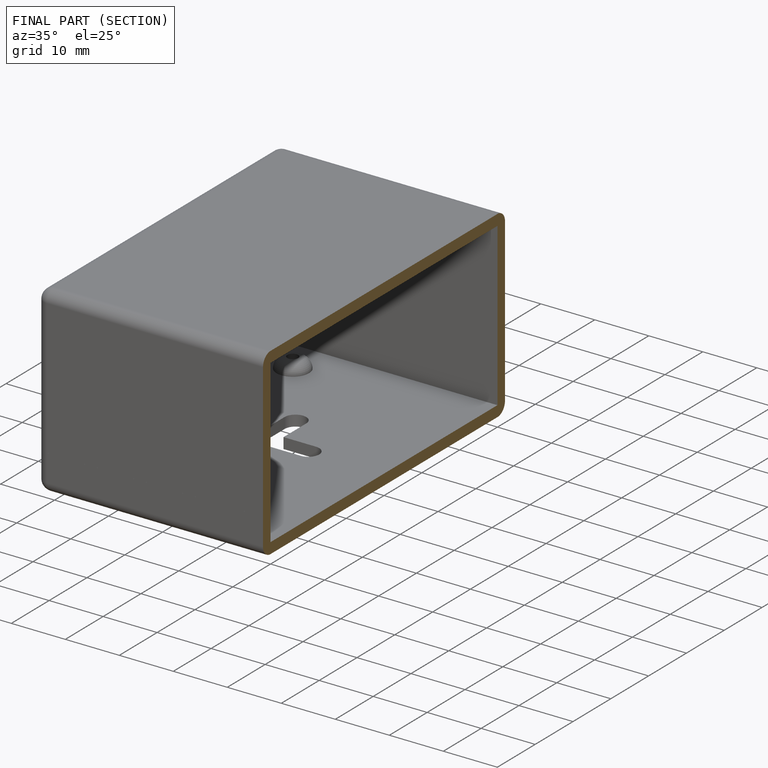
[diagram: finished part — half-section view (interior)]
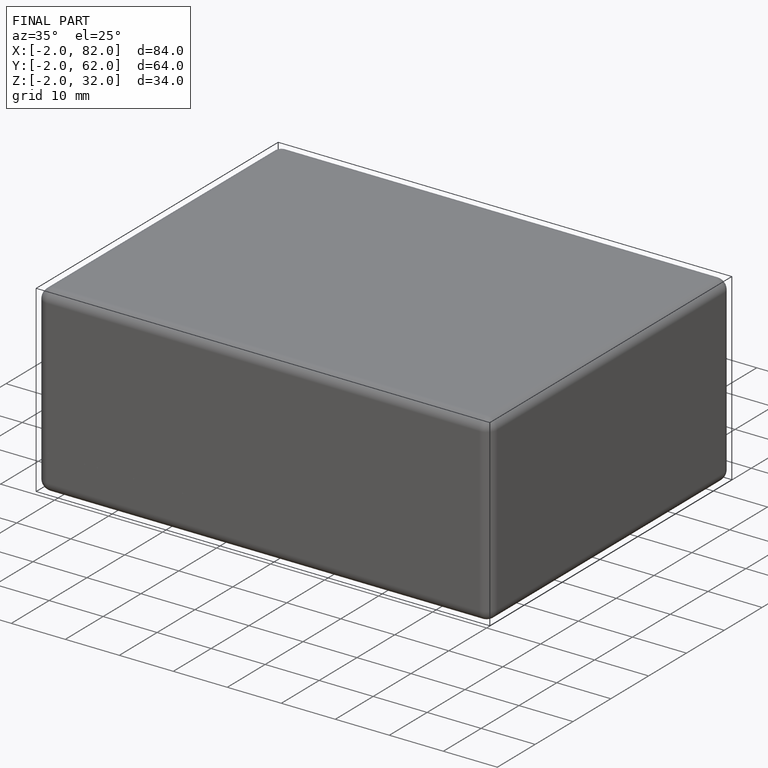
[diagram: finished part — iso view with bounding-box wireframe]
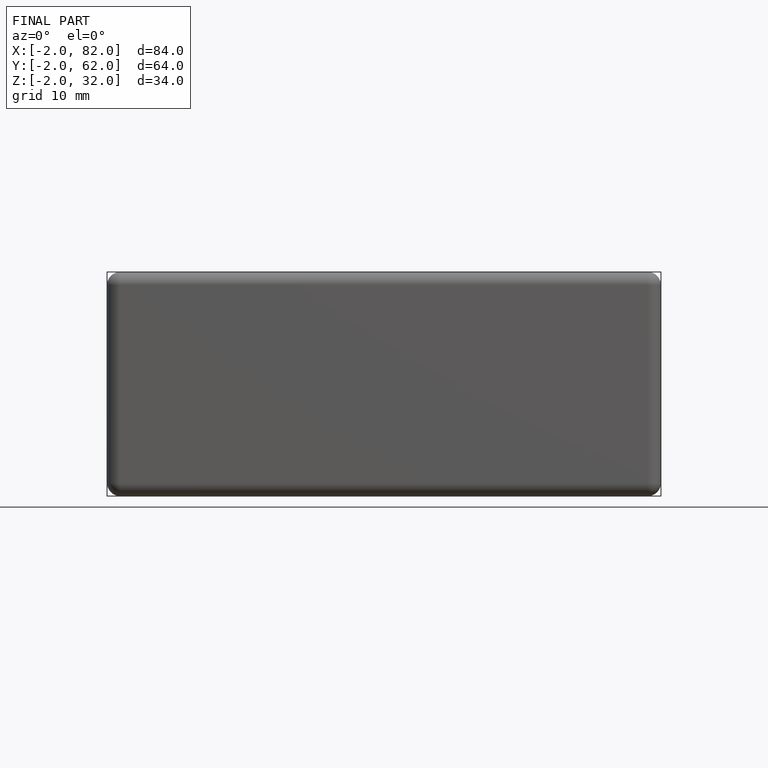
[diagram: finished part — front view with bounding-box wireframe]
